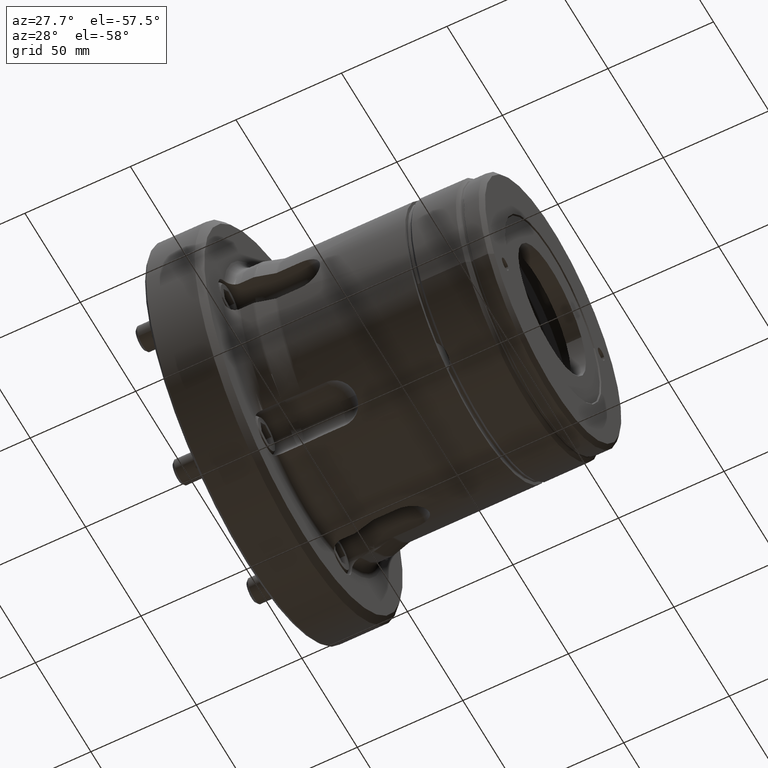
[diagram: clean part render]
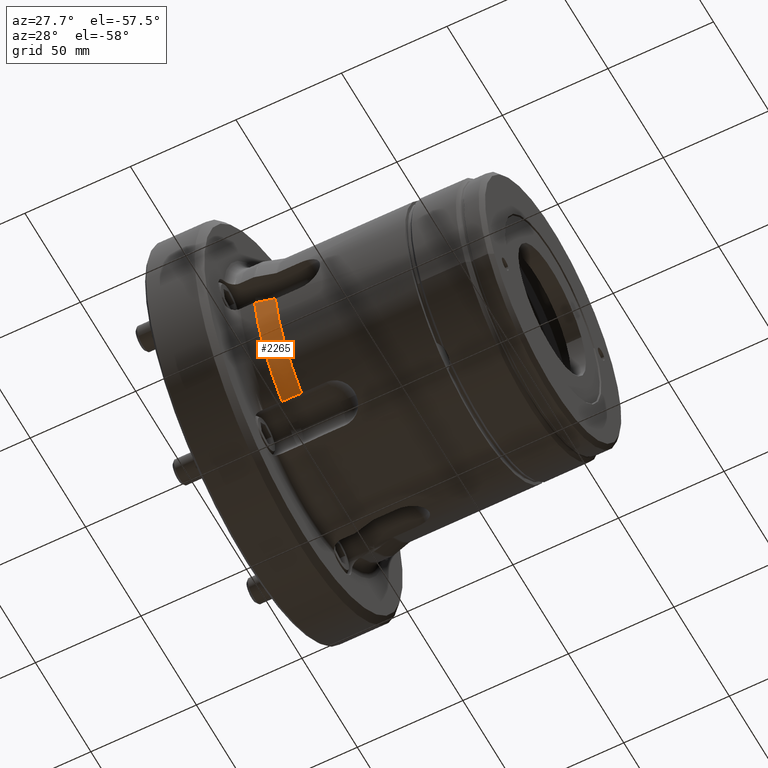
[diagram: same view with one face highlighted and labeled with its STEP entity id]
A machine part, auxiliary view. The second image highlights one B-rep face of the part: STEP entity #2265.
In plain terms, the highlighted conical surface has half-angle 15 deg.
Its self-contained STEP definition (entity closure, byte-faithful):
#4 = AXIS2_PLACEMENT_3D ( 'NONE', #561, #7016, #1501 ) ;
#271 = CARTESIAN_POINT ( 'NONE',  ( 42.39373213893743000, -41.51025403784463900, -51.89786902863743700 ) ) ;
#561 = CARTESIAN_POINT ( 'NONE',  ( 38.88149964254541400, 0.0000000000000000000, 0.0000000000000000000 ) ) ;
#571 = CARTESIAN_POINT ( 'NONE',  ( 38.88149964254541400, -66.65180216709819700, -9.999883847770606200 ) ) ;
#648 = CARTESIAN_POINT ( 'NONE',  ( 42.39373213893743000, -41.51025403784463900, -51.89786902863743700 ) ) ;
#810 = B_SPLINE_CURVE_WITH_KNOTS ( 'NONE', 3,
 ( #8893, #1564, #8377, #1724 ),
 .UNSPECIFIED., .F., .F.,
 ( 4, 4 ),
 ( 2.069653795348635900E-007, 0.005234273990664197600 ),
 .UNSPECIFIED. ) ;
#872 = DIRECTION ( 'NONE',  ( -1.000000000000000000, -0.0000000000000000000, -0.0000000000000000000 ) ) ;
#971 = CARTESIAN_POINT ( 'NONE',  ( 39.43953624125602200, -41.90987901343705600, -52.59172855099610200 ) ) ;
#990 = B_SPLINE_CURVE_WITH_KNOTS ( 'NONE', 3,
 ( #2878, #6524, #971, #9296 ),
 .UNSPECIFIED., .F., .F.,
 ( 4, 4 ),
 ( 0.004601392502524836100, 0.006335379356377019400 ),
 .UNSPECIFIED. ) ;
#1377 = CARTESIAN_POINT ( 'NONE',  ( 47.44862737637679100, 0.0000000000000000000, 0.0000000000000000000 ) ) ;
#1501 = DIRECTION ( 'NONE',  ( 0.0000000000000000000, 0.0000000000000000000, 1.000000000000000000 ) ) ;
#1564 = CARTESIAN_POINT ( 'NONE',  ( 45.76265557671763400, -64.79155142998530400, -9.968894665583066600 ) ) ;
#1577 = B_SPLINE_CURVE_WITH_KNOTS ( 'NONE', 3,
 ( #5851, #4037, #5982, #5995 ),
 .UNSPECIFIED., .F., .F.,
 ( 4, 4 ),
 ( 0.003517723848099800400, 0.008751790873384512900 ),
 .UNSPECIFIED. ) ;
#1724 = CARTESIAN_POINT ( 'NONE',  ( 42.39373213893747300, -65.69999999999998900, -10.00000000000000200 ) ) ;
#1906 = VERTEX_POINT ( 'NONE', #2638 ) ;
#1995 = EDGE_CURVE ( 'NONE', #10882, #6189, #990, .T. ) ;
#2265 = ADVANCED_FACE ( 'NONE', ( #2520 ), #9267, .T. ) ;
#2359 = AXIS2_PLACEMENT_3D ( 'NONE', #1377, #3272, #5997 ) ;
#2520 = FACE_OUTER_BOUND ( 'NONE', #8028, .T. ) ;
#2524 = CARTESIAN_POINT ( 'NONE',  ( 41.78094379642838900, -65.86608721525402600, -10.00000000000000200 ) ) ;
#2638 = CARTESIAN_POINT ( 'NONE',  ( 42.39373213893747300, -65.69999999999998900, -10.00000000000000200 ) ) ;
#2735 = EDGE_CURVE ( 'NONE', #4270, #11705, #1577, .T. ) ;
#2878 = CARTESIAN_POINT ( 'NONE',  ( 40.55576355544213400, -41.74942194600339500, -52.33713564167020100 ) ) ;
#3024 = B_SPLINE_CURVE_WITH_KNOTS ( 'NONE', 3,
 ( #8930, #2524, #10820, #5285 ),
 .UNSPECIFIED., .F., .F.,
 ( 4, 4 ),
 ( 0.005234273990664197600, 0.007138934710697816100 ),
 .UNSPECIFIED. ) ;
#3272 = DIRECTION ( 'NONE',  ( -1.000000000000000000, -0.0000000000000000000, -0.0000000000000000000 ) ) ;
#3793 = CIRCLE ( 'NONE', #4, 67.39777747886719800 ) ;
#3832 = ORIENTED_EDGE ( 'NONE', *, *, #9536, .T. ) ;
#4037 = CARTESIAN_POINT ( 'NONE',  ( 44.07769360423665700, -41.28204761568795100, -51.50260391084855600 ) ) ;
#4270 = VERTEX_POINT ( 'NONE', #648 ) ;
#4469 = EDGE_CURVE ( 'NONE', #4691, #1906, #810, .T. ) ;
#4691 = VERTEX_POINT ( 'NONE', #11646 ) ;
#4774 = ORIENTED_EDGE ( 'NONE', *, *, #5842, .F. ) ;
#4899 = CARTESIAN_POINT ( 'NONE',  ( 40.55576355544213400, -41.74942194600339500, -52.33713564167020100 ) ) ;
#5079 = CARTESIAN_POINT ( 'NONE',  ( 40.55576355544227600, -66.20000000000007400, -9.987492177719088800 ) ) ;
#5285 = CARTESIAN_POINT ( 'NONE',  ( 40.55576355544227600, -66.20000000000007400, -9.987492177719088800 ) ) ;
#5635 = B_SPLINE_CURVE_WITH_KNOTS ( 'NONE', 3,
 ( #7759, #7799, #10628, #5079 ),
 .UNSPECIFIED., .F., .F.,
 ( 4, 4 ),
 ( 2.071533034135757400E-007, 0.001734194007155752900 ),
 .UNSPECIFIED. ) ;
#5842 = EDGE_CURVE ( 'NONE', #6189, #8448, #3793, .T. ) ;
#5851 = CARTESIAN_POINT ( 'NONE',  ( 42.39373213893743000, -41.51025403784463900, -51.89786902863743700 ) ) ;
#5852 = CARTESIAN_POINT ( 'NONE',  ( 41.78094379642830300, -41.59329764547166500, -52.04170477629126200 ) ) ;
#5982 = CARTESIAN_POINT ( 'NONE',  ( 45.76265557671762700, -41.02909174303901100, -51.12668215618153100 ) ) ;
#5995 = CARTESIAN_POINT ( 'NONE',  ( 47.44862737637679100, -40.75220749511994000, -50.76964606401921300 ) ) ;
#5997 = DIRECTION ( 'NONE',  ( 0.0000000000000000000, 0.0000000000000000000, 1.000000000000000000 ) ) ;
#6189 = VERTEX_POINT ( 'NONE', #10561 ) ;
#6423 = CARTESIAN_POINT ( 'NONE',  ( 47.44862737637679100, 0.0000000000000000000, 0.0000000000000000000 ) ) ;
#6524 = CARTESIAN_POINT ( 'NONE',  ( 39.99762379941528000, -41.83098599449630900, -52.46337874281629600 ) ) ;
#6690 = B_SPLINE_CURVE_WITH_KNOTS ( 'NONE', 3,
 ( #4899, #9501, #5852, #271 ),
 .UNSPECIFIED., .F., .F.,
 ( 4, 4 ),
 ( 0.001613063128066081300, 0.003517723848099800400 ),
 .UNSPECIFIED. ) ;
#6870 = EDGE_CURVE ( 'NONE', #8448, #8339, #5635, .T. ) ;
#7016 = DIRECTION ( 'NONE',  ( -1.000000000000000000, -0.0000000000000000000, -0.0000000000000000000 ) ) ;
#7332 = DIRECTION ( 'NONE',  ( 0.0000000000000000000, 0.0000000000000000000, 1.000000000000000000 ) ) ;
#7535 = ORIENTED_EDGE ( 'NONE', *, *, #2735, .T. ) ;
#7759 = CARTESIAN_POINT ( 'NONE',  ( 38.88149964254541400, -66.65180216709819700, -9.999883847770606200 ) ) ;
#7799 = CARTESIAN_POINT ( 'NONE',  ( 39.43953624125606400, -66.50071246081655800, -9.999155619670443000 ) ) ;
#8028 = EDGE_LOOP ( 'NONE', ( #3832, #10697, #9671, #11487, #4774, #11081, #9879, #7535 ) ) ;
#8055 = EDGE_CURVE ( 'NONE', #1906, #8339, #3024, .T. ) ;
#8233 = EDGE_CURVE ( 'NONE', #10882, #4270, #6690, .T. ) ;
#8339 = VERTEX_POINT ( 'NONE', #8719 ) ;
#8377 = CARTESIAN_POINT ( 'NONE',  ( 44.07769360423668600, -65.24358715568662600, -10.00000000000000200 ) ) ;
#8448 = VERTEX_POINT ( 'NONE', #571 ) ;
#8597 = CIRCLE ( 'NONE', #9919, 65.10222252113280200 ) ;
#8719 = CARTESIAN_POINT ( 'NONE',  ( 40.55576355544227600, -66.20000000000007400, -9.987492177719088800 ) ) ;
#8893 = CARTESIAN_POINT ( 'NONE',  ( 47.44862737637679100, -64.34390698014529200, -9.907623919058565300 ) ) ;
#8930 = CARTESIAN_POINT ( 'NONE',  ( 42.39373213893747300, -65.69999999999998900, -10.00000000000000200 ) ) ;
#9267 = CONICAL_SURFACE ( 'NONE', #2359, 65.10222252113280200, 0.2617993877991499600 ) ;
#9296 = CARTESIAN_POINT ( 'NONE',  ( 38.88149964254541400, -41.98605453061237100, -52.72221196083624100 ) ) ;
#9501 = CARTESIAN_POINT ( 'NONE',  ( 41.16828785504592500, -41.67305001542563000, -52.18811004044022200 ) ) ;
#9506 = CARTESIAN_POINT ( 'NONE',  ( 40.55576355544213400, -41.74942194600339500, -52.33713564167020100 ) ) ;
#9536 = EDGE_CURVE ( 'NONE', #11705, #4691, #8597, .T. ) ;
#9671 = ORIENTED_EDGE ( 'NONE', *, *, #8055, .T. ) ;
#9879 = ORIENTED_EDGE ( 'NONE', *, *, #8233, .T. ) ;
#9919 = AXIS2_PLACEMENT_3D ( 'NONE', #6423, #872, #7332 ) ;
#9953 = CARTESIAN_POINT ( 'NONE',  ( 47.44862737637679100, -40.75220749511994000, -50.76964606401921300 ) ) ;
#10561 = CARTESIAN_POINT ( 'NONE',  ( 38.88149964254541400, -41.98605453061237100, -52.72221196083624100 ) ) ;
#10628 = CARTESIAN_POINT ( 'NONE',  ( 39.99762379941538600, -66.35011175689157900, -9.995007165176417600 ) ) ;
#10697 = ORIENTED_EDGE ( 'NONE', *, *, #4469, .T. ) ;
#10820 = CARTESIAN_POINT ( 'NONE',  ( 41.16828785504603900, -66.03275407823177500, -9.995864946317667000 ) ) ;
#10882 = VERTEX_POINT ( 'NONE', #9506 ) ;
#11081 = ORIENTED_EDGE ( 'NONE', *, *, #1995, .F. ) ;
#11487 = ORIENTED_EDGE ( 'NONE', *, *, #6870, .F. ) ;
#11646 = CARTESIAN_POINT ( 'NONE',  ( 47.44862737637679100, -64.34390698014529200, -9.907623919058565300 ) ) ;
#11705 = VERTEX_POINT ( 'NONE', #9953 ) ;